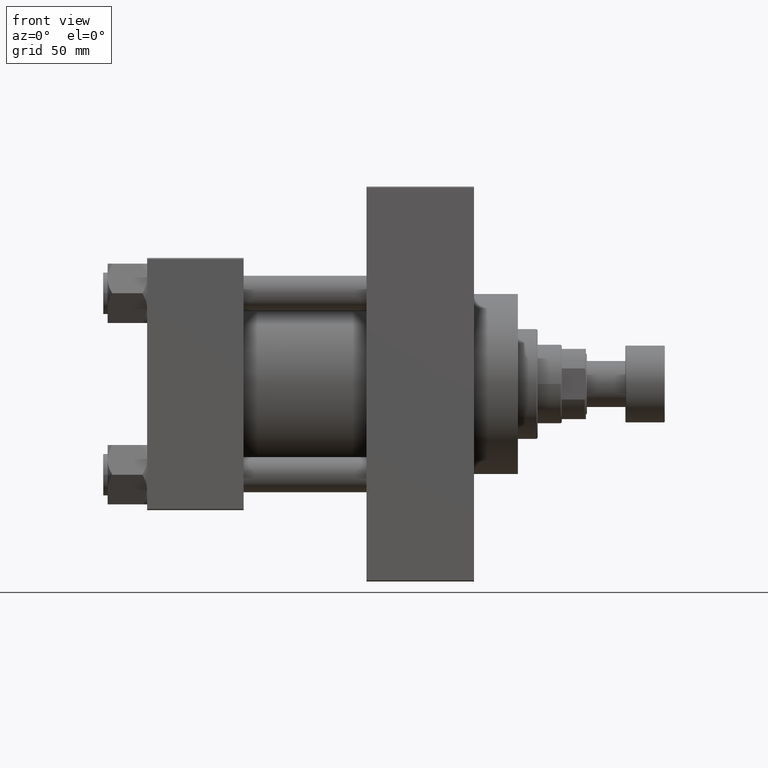
[diagram: clean part render]
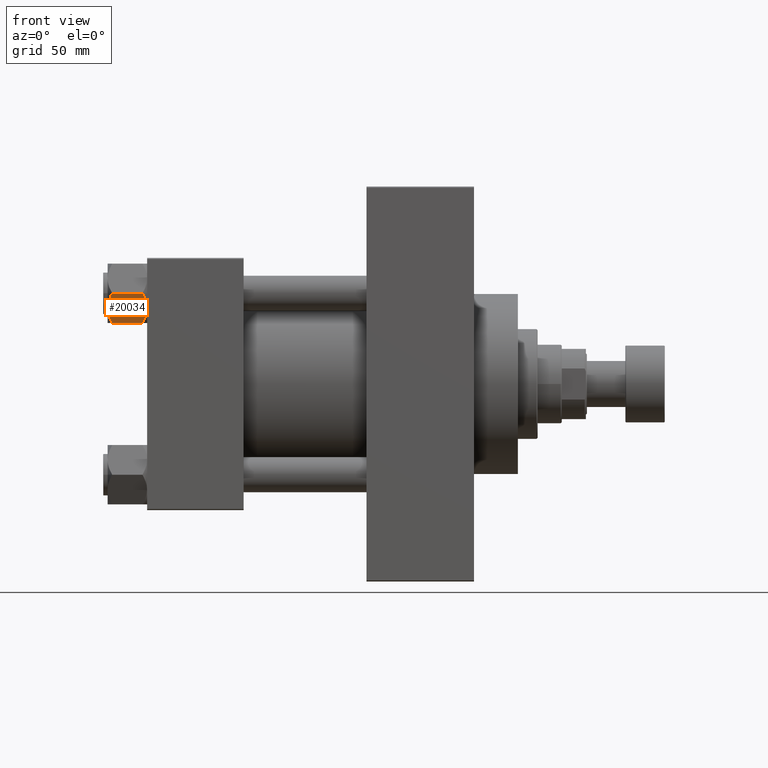
[diagram: same view with one face highlighted and labeled with its STEP entity id]
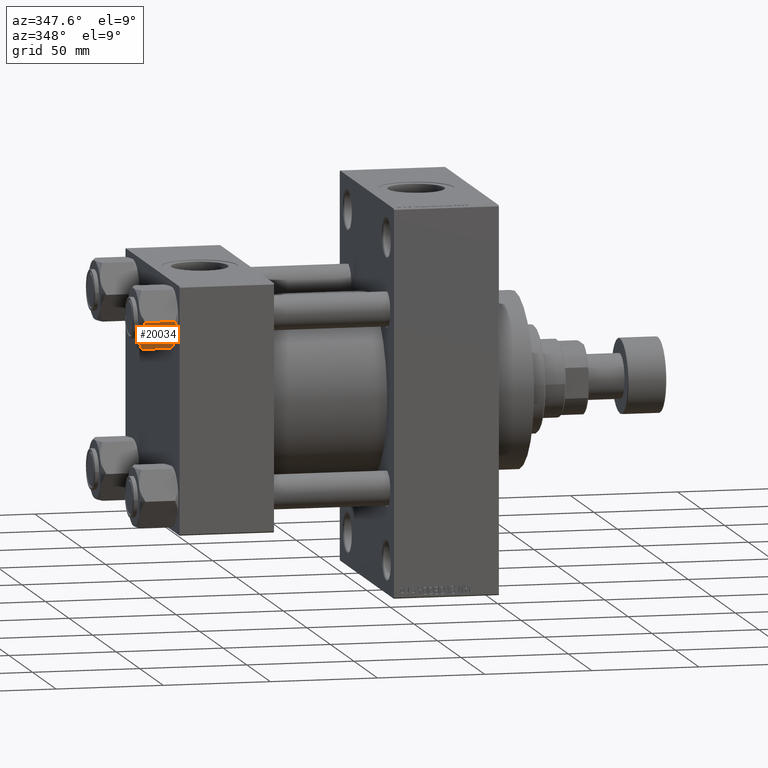
[diagram: same view with one face highlighted and labeled with its STEP entity id]
A machine part, front view. The second image highlights one B-rep face of the part: STEP entity #20034.
A second angle (auxiliary view) of the same face is appended — the face is thin or edge-on in the first view.
In plain terms, the highlighted planar face has unit normal (0, 0.866, 0.5).
Its self-contained STEP definition (entity closure, byte-faithful):
#60 = CARTESIAN_POINT ( 'NONE',  ( -11.04378428799594758, 7.926238119586002995, -0.05089381635301037932 ) ) ;
#373 = CARTESIAN_POINT ( 'NONE',  ( -15.52647173767732802, 0.1619957022864961793, -16.00000000000000000 ) ) ;
#1717 = DIRECTION ( 'NONE',  ( 0.4999999999999999445, 0.8660254037844387076, 0.000000000000000000 ) ) ;
#2327 = CARTESIAN_POINT ( 'NONE',  ( -13.99051971937273997, 2.822342635978005276, -0.7317196846281108780 ) ) ;
#2566 = CARTESIAN_POINT ( 'NONE',  ( -12.37702203890362185, 5.617002596445053619, 4.300668617525835570E-15 ) ) ;
#2946 = ORIENTED_EDGE ( 'NONE', *, *, #17317, .F. ) ;
#3326 = CARTESIAN_POINT ( 'NONE',  ( -13.04337073483128329, 4.462852799541079385, -17.75691532989870325 ) ) ;
#4274 = CARTESIAN_POINT ( 'NONE',  ( -7.809999999999996945, 13.52731680711293727, -1.999999999999998224 ) ) ;
#4680 = VERTEX_POINT ( 'NONE', #10564 ) ;
#5643 = CARTESIAN_POINT ( 'NONE',  ( -7.903528262322672582, 13.36532110482643354, -2.000000000000000000 ) ) ;
#5732 = CARTESIAN_POINT ( 'NONE',  ( -13.02784502466562522, 4.489744118371585380, -0.1971866459924509485 ) ) ;
#5937 = CARTESIAN_POINT ( 'NONE',  ( -11.71500000000000341, 6.763658403556467746, -18.00000000000000000 ) ) ;
#6007 = VECTOR ( 'NONE', #32494, 999.9999999999998863 ) ;
#6179 = CARTESIAN_POINT ( 'NONE',  ( -7.903528262322672582, 13.36532110482643354, -16.00000000000000000 ) ) ;
#6883 = CARTESIAN_POINT ( 'NONE',  ( -8.502393313253749696, 12.32805640973648309, -1.411989271640067933 ) ) ;
#6925 = ORIENTED_EDGE ( 'NONE', *, *, #42101, .F. ) ;
#6983 = CARTESIAN_POINT ( 'NONE',  ( -12.04818928091285457, 6.186557640478063114, -18.00000000000000711 ) ) ;
#7123 = CARTESIAN_POINT ( 'NONE',  ( -10.38662926516871998, 9.064464007571849891, -0.2430846701012936983 ) ) ;
#7218 = CARTESIAN_POINT ( 'NONE',  ( -15.52647173767732802, 0.1619957022864961793, -16.00000000000000000 ) ) ;
#7338 = B_SPLINE_CURVE_WITH_KNOTS ( 'NONE', 3,
 ( #32235, #2566, #5732, #2327, #31260, #17404, #46143, #23965 ),
 .UNSPECIFIED., .F., .F.,
 ( 4, 2, 2, 4 ),
 ( 0.007890825462474429161, 0.01181022244528554845, 0.01376992093669110635, 0.01572961942809666600 ),
 .UNSPECIFIED. ) ;
#7669 = CARTESIAN_POINT ( 'NONE',  ( -15.61999999999999567, 8.023367828467702033E-15, -1.999999999999998224 ) ) ;
#8302 = LINE ( 'NONE', #8769, #12212 ) ;
#8769 = CARTESIAN_POINT ( 'NONE',  ( -15.61999999999999567, 8.023367828467702033E-15, -16.00000000000000000 ) ) ;
#9566 = CARTESIAN_POINT ( 'NONE',  ( -7.903528262322672582, 13.36532110482643354, -16.00000000000000000 ) ) ;
#9579 = CARTESIAN_POINT ( 'NONE',  ( -11.05297796109637787, 7.910314210667880985, -18.00000000000000355 ) ) ;
#9822 = CARTESIAN_POINT ( 'NONE',  ( -9.439480280627259745, 10.70497417113493022, -17.26828031537189290 ) ) ;
#10214 = ORIENTED_EDGE ( 'NONE', *, *, #32491, .F. ) ;
#10564 = CARTESIAN_POINT ( 'NONE',  ( -11.71500000000000341, 6.763658403556467746, 0.000000000000000000 ) ) ;
#10632 = CARTESIAN_POINT ( 'NONE',  ( -13.36540581434587516, 3.905071680002318857, -17.61639331488794369 ) ) ;
#10770 = CARTESIAN_POINT ( 'NONE',  ( -9.114548888011780647, 11.26777185211904353, -0.9142282604026925608 ) ) ;
#11375 = CARTESIAN_POINT ( 'NONE',  ( -15.61999999999999567, 8.023367828467702033E-15, -18.00000000000000000 ) ) ;
#11947 = VERTEX_POINT ( 'NONE', #47793 ) ;
#12212 = VECTOR ( 'NONE', #1717, 999.9999999999998863 ) ;
#13121 = CARTESIAN_POINT ( 'NONE',  ( -15.61999999999999567, 8.023367828467702033E-15, -18.00000000000000000 ) ) ;
#15203 = DIRECTION ( 'NONE',  ( -0.4999999999999999445, -0.8660254037844387076, 0.000000000000000000 ) ) ;
#15967 = VERTEX_POINT ( 'NONE', #20726 ) ;
#16025 = VECTOR ( 'NONE', #46856, 1000.000000000000000 ) ;
#16524 = CARTESIAN_POINT ( 'NONE',  ( -15.52647173767732802, 0.1619957022864961793, -2.000000000000000000 ) ) ;
#17317 = EDGE_CURVE ( 'NONE', #11947, #44030, #43440, .T. ) ;
#17404 = CARTESIAN_POINT ( 'NONE',  ( -14.92394044919338825, 1.205610507090627781, -1.434462921875002683 ) ) ;
#17457 = CARTESIAN_POINT ( 'NONE',  ( -15.61999999999999567, 8.023367828467702033E-15, -16.00000000000000000 ) ) ;
#18033 = VERTEX_POINT ( 'NONE', #17457 ) ;
#18964 = B_SPLINE_CURVE_WITH_KNOTS ( 'NONE', 3,
 ( #5937, #9579, #47547, #9822, #24890, #40238, #47312, #6179 ),
 .UNSPECIFIED., .F., .F.,
 ( 4, 2, 2, 4 ),
 ( 0.007890825462474436100, 0.01181022244528555365, 0.01376992093669111156, 0.01572961942809666946 ),
 .UNSPECIFIED. ) ;
#20034 = ADVANCED_FACE ( 'NONE', ( #22063 ), #25474, .F. ) ;
#20408 = LINE ( 'NONE', #13121, #21486 ) ;
#20726 = CARTESIAN_POINT ( 'NONE',  ( -15.61999999999999567, 8.023367828467702033E-15, -1.999999999999998224 ) ) ;
#21309 = LINE ( 'NONE', #29088, #6007 ) ;
#21486 = VECTOR ( 'NONE', #39400, 1000.000000000000000 ) ;
#21709 = CARTESIAN_POINT ( 'NONE',  ( -10.06459418565412278, 9.622245127110613083, -0.3836066851120565890 ) ) ;
#21945 = CARTESIAN_POINT ( 'NONE',  ( -11.38181071908714515, 7.340759166634869715, 4.331726492258492723E-15 ) ) ;
#22063 = FACE_OUTER_BOUND ( 'NONE', #29116, .T. ) ;
#22445 = CARTESIAN_POINT ( 'NONE',  ( -15.61999999999999567, 8.023367828467702033E-15, -16.00000000000000000 ) ) ;
#23906 = ORIENTED_EDGE ( 'NONE', *, *, #24285, .F. ) ;
#23965 = CARTESIAN_POINT ( 'NONE',  ( -15.52647173767732802, 0.1619957022864961793, -2.000000000000000000 ) ) ;
#24005 = CARTESIAN_POINT ( 'NONE',  ( -11.71500000000000341, 6.763658403556467746, -18.00000000000000000 ) ) ;
#24125 = EDGE_CURVE ( 'NONE', #44030, #43424, #41950, .T. ) ;
#24285 = EDGE_CURVE ( 'NONE', #43424, #4680, #28150, .T. ) ;
#24837 = ORIENTED_EDGE ( 'NONE', *, *, #40574, .T. ) ;
#24890 = CARTESIAN_POINT ( 'NONE',  ( -9.124083218049239719, 11.25125790807804194, -17.05261278537718539 ) ) ;
#24917 = CARTESIAN_POINT ( 'NONE',  ( -7.809999999999996945, 13.52731680711293727, -18.00000000000000000 ) ) ;
#24928 = B_SPLINE_CURVE_WITH_KNOTS ( 'NONE', 3,
 ( #7218, #29110, #43973, #10632, #3326, #25451, #6983, #36888 ),
 .UNSPECIFIED., .F., .F.,
 ( 4, 2, 2, 4 ),
 ( 4.472842641907744530E-07, 0.003945636373369311792, 0.005918230917921873946, 0.007890825462474436100 ),
 .UNSPECIFIED. ) ;
#25103 = CARTESIAN_POINT ( 'NONE',  ( -7.903528262322672582, 13.36532110482643354, -2.000000000000000000 ) ) ;
#25451 = CARTESIAN_POINT ( 'NONE',  ( -12.38621571200405569, 5.601078687526927169, -17.94910618364698252 ) ) ;
#25474 = PLANE ( 'NONE',  #37703 ) ;
#25975 = EDGE_CURVE ( 'NONE', #28496, #11947, #40972, .T. ) ;
#26343 = DIRECTION ( 'NONE',  ( 0.4999999999999999445, 0.8660254037844387076, 0.000000000000000000 ) ) ;
#27768 = ORIENTED_EDGE ( 'NONE', *, *, #24125, .F. ) ;
#28150 = B_SPLINE_CURVE_WITH_KNOTS ( 'NONE', 3,
 ( #25103, #6883, #10770, #21709, #7123, #60, #21945, #43396 ),
 .UNSPECIFIED., .F., .F.,
 ( 4, 2, 2, 4 ),
 ( 4.472842641835287214E-07, 0.003945636373369305720, 0.005918230917921867007, 0.007890825462474429161 ),
 .UNSPECIFIED. ) ;
#28496 = VERTEX_POINT ( 'NONE', #9566 ) ;
#29088 = CARTESIAN_POINT ( 'NONE',  ( -15.61999999999999567, 8.023367828467702033E-15, -1.999999999999998224 ) ) ;
#29110 = CARTESIAN_POINT ( 'NONE',  ( -14.92760668674625713, 1.199260397376444409, -16.58801072835993295 ) ) ;
#29116 = EDGE_LOOP ( 'NONE', ( #33947, #24837, #6925, #10214, #23906, #27768, #2946, #45576, #45335, #34301 ) ) ;
#31260 = CARTESIAN_POINT ( 'NONE',  ( -14.30591678195076177, 2.276058899034892224, -0.9473872146228117241 ) ) ;
#32210 = VECTOR ( 'NONE', #15203, 999.9999999999998863 ) ;
#32235 = CARTESIAN_POINT ( 'NONE',  ( -11.71500000000000341, 6.763658403556467746, 0.000000000000000000 ) ) ;
#32491 = EDGE_CURVE ( 'NONE', #4680, #40488, #7338, .T. ) ;
#32494 = DIRECTION ( 'NONE',  ( -0.4999999999999999445, -0.8660254037844387076, 0.000000000000000000 ) ) ;
#32542 = DIRECTION ( 'NONE',  ( 0.4999999999999998890, 0.8660254037844385966, 0.000000000000000000 ) ) ;
#33947 = ORIENTED_EDGE ( 'NONE', *, *, #45748, .F. ) ;
#34301 = ORIENTED_EDGE ( 'NONE', *, *, #38355, .F. ) ;
#36888 = CARTESIAN_POINT ( 'NONE',  ( -11.71500000000000341, 6.763658403556467746, -18.00000000000000000 ) ) ;
#37703 = AXIS2_PLACEMENT_3D ( 'NONE', #11375, #44479, #32542 ) ;
#38199 = VERTEX_POINT ( 'NONE', #24005 ) ;
#38355 = EDGE_CURVE ( 'NONE', #42155, #38199, #24928, .T. ) ;
#39400 = DIRECTION ( 'NONE',  ( -0.000000000000000000, -0.000000000000000000, 1.000000000000000000 ) ) ;
#40238 = CARTESIAN_POINT ( 'NONE',  ( -8.506059550806615022, 12.32170630002230638, -16.56553707812499354 ) ) ;
#40488 = VERTEX_POINT ( 'NONE', #16524 ) ;
#40574 = EDGE_CURVE ( 'NONE', #18033, #15967, #20408, .T. ) ;
#40972 = LINE ( 'NONE', #22445, #43683 ) ;
#41950 = LINE ( 'NONE', #7669, #32210 ) ;
#42101 = EDGE_CURVE ( 'NONE', #40488, #15967, #21309, .T. ) ;
#42155 = VERTEX_POINT ( 'NONE', #373 ) ;
#42370 = EDGE_CURVE ( 'NONE', #38199, #28496, #18964, .T. ) ;
#43396 = CARTESIAN_POINT ( 'NONE',  ( -11.71500000000000341, 6.763658403556467746, 0.000000000000000000 ) ) ;
#43424 = VERTEX_POINT ( 'NONE', #5643 ) ;
#43440 = LINE ( 'NONE', #24917, #16025 ) ;
#43683 = VECTOR ( 'NONE', #26343, 999.9999999999998863 ) ;
#43973 = CARTESIAN_POINT ( 'NONE',  ( -14.31545111198821374, 2.259544954993889299, -17.08577173959730544 ) ) ;
#44030 = VERTEX_POINT ( 'NONE', #4274 ) ;
#44479 = DIRECTION ( 'NONE',  ( 0.8660254037844387076, -0.4999999999999999445, 0.000000000000000000 ) ) ;
#45335 = ORIENTED_EDGE ( 'NONE', *, *, #42370, .F. ) ;
#45576 = ORIENTED_EDGE ( 'NONE', *, *, #25975, .F. ) ;
#45748 = EDGE_CURVE ( 'NONE', #18033, #42155, #8302, .T. ) ;
#46143 = CARTESIAN_POINT ( 'NONE',  ( -15.22736220980736377, 0.6800686015852189792, -1.706311779141444385 ) ) ;
#46856 = DIRECTION ( 'NONE',  ( -0.000000000000000000, -0.000000000000000000, 1.000000000000000000 ) ) ;
#47312 = CARTESIAN_POINT ( 'NONE',  ( -8.202637790192643052, 12.84724820552771263, -16.29368822085855584 ) ) ;
#47547 = CARTESIAN_POINT ( 'NONE',  ( -10.40215497533436917, 9.037572688741351001, -17.80281335400754017 ) ) ;
#47793 = CARTESIAN_POINT ( 'NONE',  ( -7.809999999999996945, 13.52731680711293727, -16.00000000000000000 ) ) ;